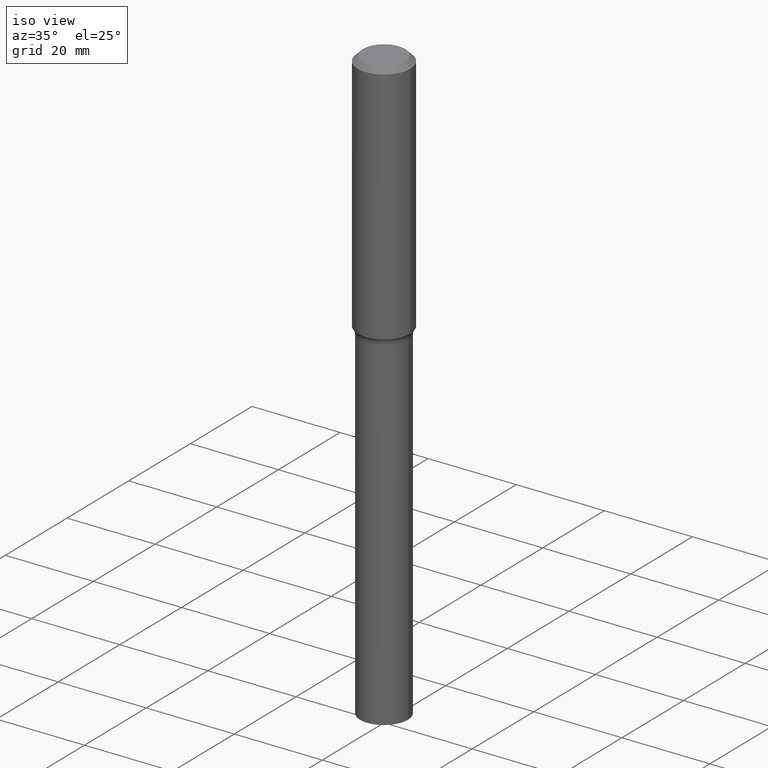
[diagram: clean part render]
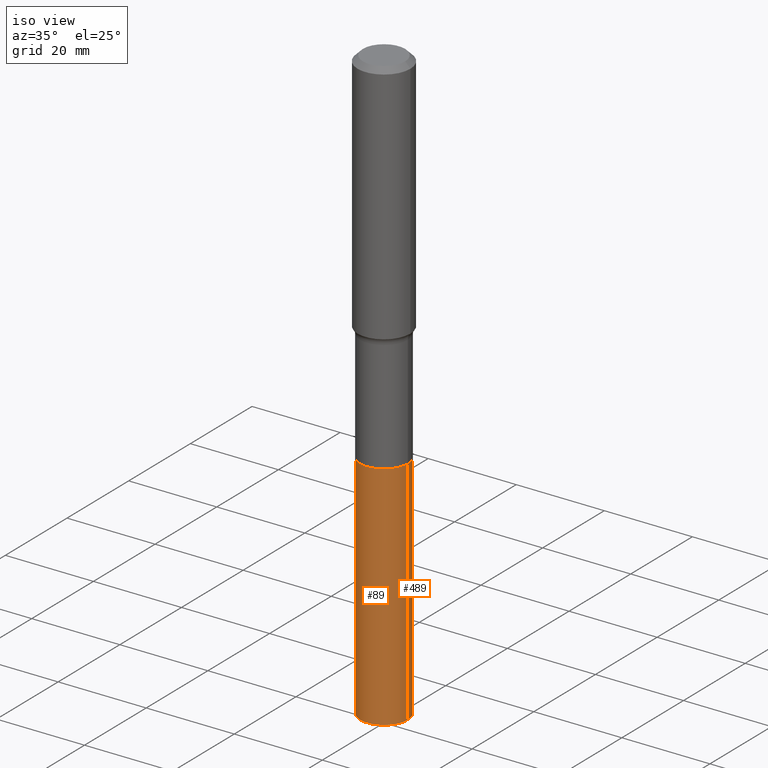
[diagram: same view with one multi-face feature highlighted, each face labeled with its STEP entity id]
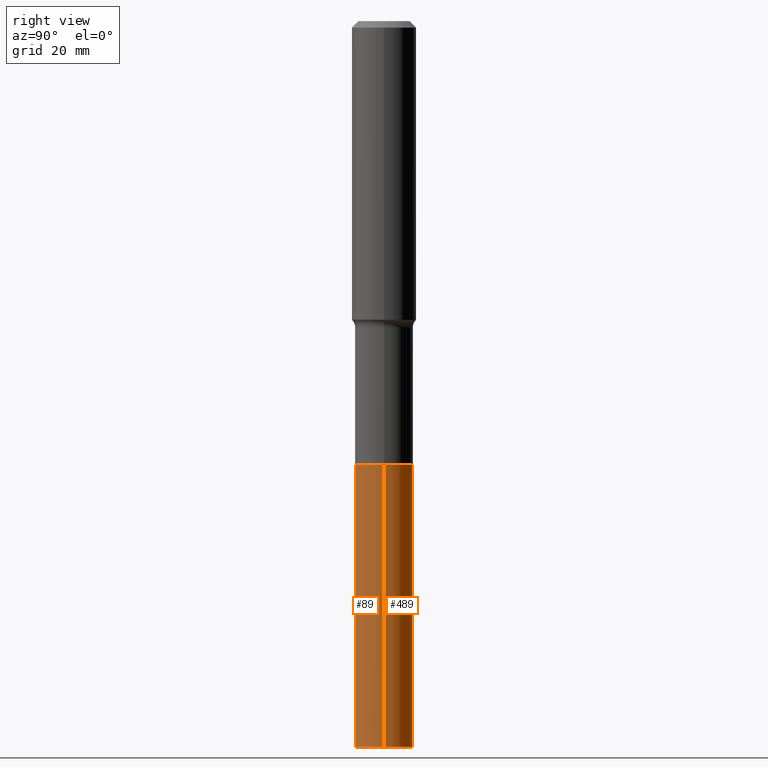
[diagram: same view with one multi-face feature highlighted, each face labeled with its STEP entity id]
A machine part, iso view. The highlighted faces form ONE feature: a constant-radius fillet chain: 2 tangent blend faces with common blend radius 5.4 mm. The faces share edges in the B-rep.
A second angle (right view) of the same feature is appended — it is thin or edge-on in the first view.
Their STEP definitions:
[1] entity #89 (Cylinder):
#17 = DIRECTION ( 'NONE',  ( 1.000000000000000000, -6.982962677686263555E-15, 0.000000000000000000 ) ) ;
#24 = DIRECTION ( 'NONE',  ( -2.445468806185136877E-29, 3.491481338843145188E-15, 1.000000000000000000 ) ) ;
#57 = CARTESIAN_POINT ( 'NONE',  ( 7.935546276070771530E-29, -1.132985694454601097E-14, -3.245000000000000995 ) ) ;
#59 = CYLINDRICAL_SURFACE ( 'NONE', #75, 0.2126000000000001777 ) ;
#60 = FACE_OUTER_BOUND ( 'NONE', #215, .T. ) ;
#65 = ORIENTED_EDGE ( 'NONE', *, *, #213, .F. ) ;
#75 = AXIS2_PLACEMENT_3D ( 'NONE', #57, #176, #17 ) ;
#89 = ADVANCED_FACE ( 'NONE', ( #60 ), #59, .T. ) ;
#102 = LINE ( 'NONE', #263, #477 ) ;
#105 = ORIENTED_EDGE ( 'NONE', *, *, #159, .F. ) ;
#107 = CARTESIAN_POINT ( 'NONE',  ( 7.935546276070771530E-29, -1.132985694454601097E-14, -3.245000000000000995 ) ) ;
#141 = EDGE_CURVE ( 'NONE', #362, #331, #411, .T. ) ;
#159 = EDGE_CURVE ( 'NONE', #362, #310, #390, .T. ) ;
#176 = DIRECTION ( 'NONE',  ( -2.445468806185136597E-29, 3.491481338843145583E-15, 1.000000000000000000 ) ) ;
#196 = CARTESIAN_POINT ( 'NONE',  ( -0.2126000000000000112, -1.343292627402269149E-14, -3.245000000000000995 ) ) ;
#207 = EDGE_CURVE ( 'NONE', #331, #317, #102, .T. ) ;
#210 = DIRECTION ( 'NONE',  ( 1.000000000000000000, -6.982962677686267499E-15, 0.000000000000000000 ) ) ;
#213 = EDGE_CURVE ( 'NONE', #310, #317, #415, .T. ) ;
#215 = EDGE_LOOP ( 'NONE', ( #105, #344, #516, #65 ) ) ;
#251 = CARTESIAN_POINT ( 'NONE',  ( 1.299766670487400218E-28, -1.855722331595131973E-14, -5.315000000000000391 ) ) ;
#258 = CARTESIAN_POINT ( 'NONE',  ( -0.2126000000000003720, -1.343292627402268675E-14, -5.315000000000000391 ) ) ;
#263 = CARTESIAN_POINT ( 'NONE',  ( 0.2126000000000001777, -1.281443480982211124E-14, -3.245000000000000995 ) ) ;
#310 = VERTEX_POINT ( 'NONE', #196 ) ;
#317 = VERTEX_POINT ( 'NONE', #474 ) ;
#331 = VERTEX_POINT ( 'NONE', #476 ) ;
#344 = ORIENTED_EDGE ( 'NONE', *, *, #141, .T. ) ;
#362 = VERTEX_POINT ( 'NONE', #258 ) ;
#383 = VECTOR ( 'NONE', #24, 39.37007874015748143 ) ;
#390 = LINE ( 'NONE', #430, #383 ) ;
#411 = CIRCLE ( 'NONE', #445, 0.2126000000000003443 ) ;
#415 = CIRCLE ( 'NONE', #452, 0.2126000000000000112 ) ;
#430 = CARTESIAN_POINT ( 'NONE',  ( -0.2126000000000001777, -9.819243088320037104E-15, -3.245000000000000995 ) ) ;
#445 = AXIS2_PLACEMENT_3D ( 'NONE', #251, #486, #210 ) ;
#452 = AXIS2_PLACEMENT_3D ( 'NONE', #107, #468, #506 ) ;
#463 = DIRECTION ( 'NONE',  ( -2.445468806185136877E-29, 3.491481338843145188E-15, 1.000000000000000000 ) ) ;
#468 = DIRECTION ( 'NONE',  ( -2.445468806185136597E-29, 3.491481338843145583E-15, 1.000000000000000000 ) ) ;
#474 = CARTESIAN_POINT ( 'NONE',  ( 0.2126000000000000112, -1.281443480982211124E-14, -3.245000000000000995 ) ) ;
#476 = CARTESIAN_POINT ( 'NONE',  ( 0.2126000000000003443, -2.004180118122742316E-14, -5.315000000000000391 ) ) ;
#477 = VECTOR ( 'NONE', #463, 39.37007874015748143 ) ;
#486 = DIRECTION ( 'NONE',  ( -2.445468806185136597E-29, 3.491481338843145583E-15, 1.000000000000000000 ) ) ;
#506 = DIRECTION ( 'NONE',  ( 1.000000000000000000, -6.982962677686269077E-15, 0.000000000000000000 ) ) ;
#516 = ORIENTED_EDGE ( 'NONE', *, *, #207, .T. ) ;
[2] entity #489 (Cylinder):
#24 = DIRECTION ( 'NONE',  ( -2.445468806185136877E-29, 3.491481338843145188E-15, 1.000000000000000000 ) ) ;
#46 = DIRECTION ( 'NONE',  ( -2.445468806185136597E-29, 3.491481338843145583E-15, 1.000000000000000000 ) ) ;
#48 = CARTESIAN_POINT ( 'NONE',  ( 7.935546276070771530E-29, -1.132985694454601097E-14, -3.245000000000000995 ) ) ;
#53 = DIRECTION ( 'NONE',  ( -2.445468806185136597E-29, 3.491481338843145583E-15, 1.000000000000000000 ) ) ;
#79 = EDGE_LOOP ( 'NONE', ( #518, #391, #472, #464 ) ) ;
#90 = DIRECTION ( 'NONE',  ( 1.000000000000000000, -6.982962677686263555E-15, 0.000000000000000000 ) ) ;
#98 = DIRECTION ( 'NONE',  ( 1.000000000000000000, -6.982962677686267499E-15, 0.000000000000000000 ) ) ;
#102 = LINE ( 'NONE', #263, #477 ) ;
#135 = FACE_OUTER_BOUND ( 'NONE', #79, .T. ) ;
#159 = EDGE_CURVE ( 'NONE', #362, #310, #390, .T. ) ;
#168 = DIRECTION ( 'NONE',  ( 1.000000000000000000, -6.982962677686269077E-15, 0.000000000000000000 ) ) ;
#196 = CARTESIAN_POINT ( 'NONE',  ( -0.2126000000000000112, -1.343292627402269149E-14, -3.245000000000000995 ) ) ;
#206 = DIRECTION ( 'NONE',  ( -2.445468806185136597E-29, 3.491481338843145583E-15, 1.000000000000000000 ) ) ;
#207 = EDGE_CURVE ( 'NONE', #331, #317, #102, .T. ) ;
#212 = CARTESIAN_POINT ( 'NONE',  ( 7.935546276070771530E-29, -1.132985694454601097E-14, -3.245000000000000995 ) ) ;
#216 = CYLINDRICAL_SURFACE ( 'NONE', #479, 0.2126000000000001777 ) ;
#258 = CARTESIAN_POINT ( 'NONE',  ( -0.2126000000000003720, -1.343292627402268675E-14, -5.315000000000000391 ) ) ;
#263 = CARTESIAN_POINT ( 'NONE',  ( 0.2126000000000001777, -1.281443480982211124E-14, -3.245000000000000995 ) ) ;
#290 = CIRCLE ( 'NONE', #492, 0.2126000000000003443 ) ;
#310 = VERTEX_POINT ( 'NONE', #196 ) ;
#317 = VERTEX_POINT ( 'NONE', #474 ) ;
#331 = VERTEX_POINT ( 'NONE', #476 ) ;
#347 = EDGE_CURVE ( 'NONE', #331, #362, #290, .T. ) ;
#362 = VERTEX_POINT ( 'NONE', #258 ) ;
#383 = VECTOR ( 'NONE', #24, 39.37007874015748143 ) ;
#386 = EDGE_CURVE ( 'NONE', #317, #310, #502, .T. ) ;
#390 = LINE ( 'NONE', #430, #383 ) ;
#391 = ORIENTED_EDGE ( 'NONE', *, *, #159, .T. ) ;
#419 = AXIS2_PLACEMENT_3D ( 'NONE', #48, #206, #168 ) ;
#430 = CARTESIAN_POINT ( 'NONE',  ( -0.2126000000000001777, -9.819243088320037104E-15, -3.245000000000000995 ) ) ;
#451 = CARTESIAN_POINT ( 'NONE',  ( 1.299766670487400218E-28, -1.855722331595131973E-14, -5.315000000000000391 ) ) ;
#463 = DIRECTION ( 'NONE',  ( -2.445468806185136877E-29, 3.491481338843145188E-15, 1.000000000000000000 ) ) ;
#464 = ORIENTED_EDGE ( 'NONE', *, *, #207, .F. ) ;
#472 = ORIENTED_EDGE ( 'NONE', *, *, #386, .F. ) ;
#474 = CARTESIAN_POINT ( 'NONE',  ( 0.2126000000000000112, -1.281443480982211124E-14, -3.245000000000000995 ) ) ;
#476 = CARTESIAN_POINT ( 'NONE',  ( 0.2126000000000003443, -2.004180118122742316E-14, -5.315000000000000391 ) ) ;
#477 = VECTOR ( 'NONE', #463, 39.37007874015748143 ) ;
#479 = AXIS2_PLACEMENT_3D ( 'NONE', #212, #46, #90 ) ;
#489 = ADVANCED_FACE ( 'NONE', ( #135 ), #216, .T. ) ;
#492 = AXIS2_PLACEMENT_3D ( 'NONE', #451, #53, #98 ) ;
#502 = CIRCLE ( 'NONE', #419, 0.2126000000000000112 ) ;
#518 = ORIENTED_EDGE ( 'NONE', *, *, #347, .T. ) ;